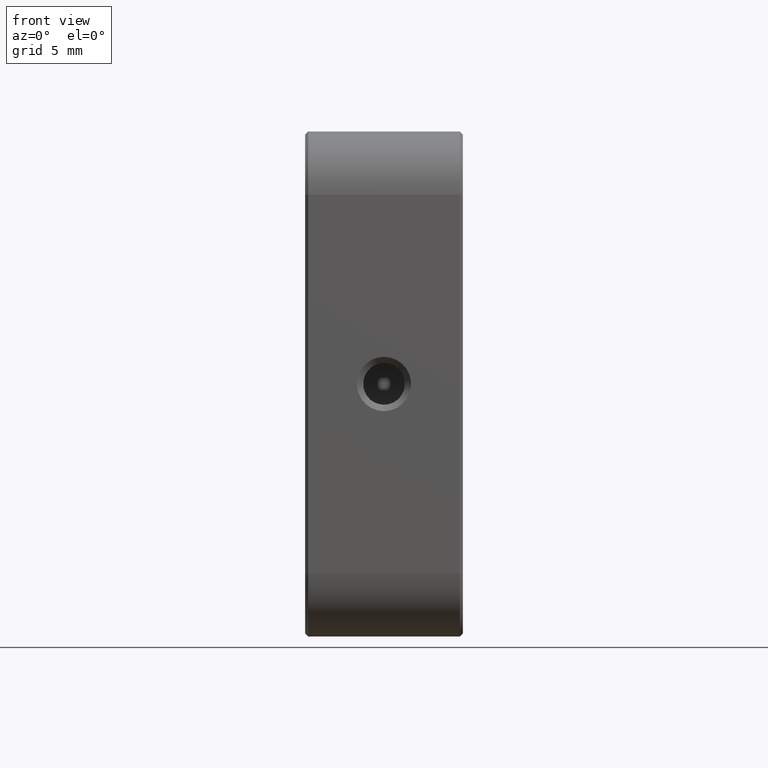
[diagram: clean part render]
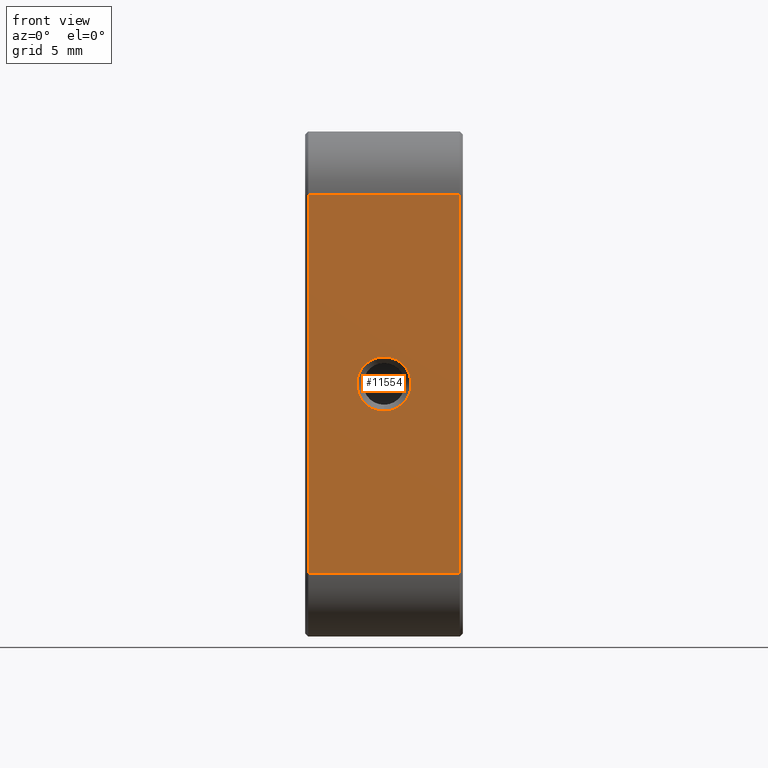
[diagram: same view with one face highlighted and labeled with its STEP entity id]
A machine part, front view. The second image highlights one B-rep face of the part: STEP entity #11554.
In plain terms, the highlighted planar face has unit normal (-0, 1, 0).
Its self-contained STEP definition (entity closure, byte-faithful):
#6 = FACE_BOUND ( 'NONE', #8148, .T. ) ;
#11 = LINE ( 'NONE', #8696, #2052 ) ;
#130 = VERTEX_POINT ( 'NONE', #3807 ) ;
#564 = DIRECTION ( 'NONE',  ( -0.000000000000000000, -1.000000000000000000, -0.000000000000000000 ) ) ;
#911 = VERTEX_POINT ( 'NONE', #11695 ) ;
#1003 = CARTESIAN_POINT ( 'NONE',  ( -8.709600636929948791, -17.89069877659089158, 25.00000000000000355 ) ) ;
#1129 = LINE ( 'NONE', #4371, #5208 ) ;
#1802 = ORIENTED_EDGE ( 'NONE', *, *, #11787, .F. ) ;
#2052 = VECTOR ( 'NONE', #2136, 1000.000000000000000 ) ;
#2136 = DIRECTION ( 'NONE',  ( 0.000000000000000000, 0.000000000000000000, 1.000000000000000000 ) ) ;
#2444 = ORIENTED_EDGE ( 'NONE', *, *, #2806, .T. ) ;
#2594 = CARTESIAN_POINT ( 'NONE',  ( -14.70960063692994879, -17.89069877659089158, 40.00000000000001421 ) ) ;
#2686 = DIRECTION ( 'NONE',  ( 0.000000000000000000, 0.000000000000000000, -1.000000000000000000 ) ) ;
#2765 = DIRECTION ( 'NONE',  ( 1.000000000000000000, -0.000000000000000000, -0.000000000000000000 ) ) ;
#2806 = EDGE_CURVE ( 'NONE', #130, #911, #1129, .T. ) ;
#3440 = DIRECTION ( 'NONE',  ( -0.000000000000000000, 1.000000000000000000, 0.000000000000000000 ) ) ;
#3662 = ORIENTED_EDGE ( 'NONE', *, *, #11995, .F. ) ;
#3807 = CARTESIAN_POINT ( 'NONE',  ( -8.709600636929948791, -17.89069877659089158, 55.00000000000000711 ) ) ;
#4001 = EDGE_CURVE ( 'NONE', #14053, #6608, #11372, .T. ) ;
#4308 = CARTESIAN_POINT ( 'NONE',  ( -20.70960063692994169, -17.89069877659089158, 60.00000000000001421 ) ) ;
#4371 = CARTESIAN_POINT ( 'NONE',  ( -8.459600636929948791, -17.89069877659089158, 55.00000000000000711 ) ) ;
#4787 = LINE ( 'NONE', #4308, #11023 ) ;
#5208 = VECTOR ( 'NONE', #5452, 1000.000000000000000 ) ;
#5452 = DIRECTION ( 'NONE',  ( -1.000000000000000000, 0.000000000000000000, 0.000000000000000000 ) ) ;
#6396 = EDGE_CURVE ( 'NONE', #911, #14053, #4787, .T. ) ;
#6606 = EDGE_CURVE ( 'NONE', #6608, #130, #11, .T. ) ;
#6608 = VERTEX_POINT ( 'NONE', #1003 ) ;
#6791 = CIRCLE ( 'NONE', #10212, 2.149999999999999023 ) ;
#6855 = ORIENTED_EDGE ( 'NONE', *, *, #6396, .T. ) ;
#6975 = CARTESIAN_POINT ( 'NONE',  ( -20.70960063692994169, -17.89069877659089158, 25.00000000000000355 ) ) ;
#7087 = CARTESIAN_POINT ( 'NONE',  ( -14.70960063692994879, -17.89069877659089158, 37.85000000000001563 ) ) ;
#7626 = DIRECTION ( 'NONE',  ( 0.000000000000000000, 0.000000000000000000, -1.000000000000000000 ) ) ;
#7780 = CARTESIAN_POINT ( 'NONE',  ( -8.459600636929948791, -17.89069877659089158, 60.00000000000001421 ) ) ;
#8148 = EDGE_LOOP ( 'NONE', ( #1802, #3662 ) ) ;
#8162 = CIRCLE ( 'NONE', #13674, 2.149999999999999023 ) ;
#8696 = CARTESIAN_POINT ( 'NONE',  ( -8.709600636929948791, -17.89069877659089158, 55.00000000000000711 ) ) ;
#8787 = DIRECTION ( 'NONE',  ( 0.000000000000000000, 0.000000000000000000, -1.000000000000000000 ) ) ;
#8819 = PLANE ( 'NONE',  #14134 ) ;
#8858 = VERTEX_POINT ( 'NONE', #7087 ) ;
#8905 = ORIENTED_EDGE ( 'NONE', *, *, #6606, .T. ) ;
#8939 = VERTEX_POINT ( 'NONE', #13049 ) ;
#9281 = CARTESIAN_POINT ( 'NONE',  ( -8.459600636929948791, -17.89069877659089158, 25.00000000000000355 ) ) ;
#10079 = ORIENTED_EDGE ( 'NONE', *, *, #4001, .T. ) ;
#10212 = AXIS2_PLACEMENT_3D ( 'NONE', #2594, #564, #2686 ) ;
#11023 = VECTOR ( 'NONE', #8787, 1000.000000000000000 ) ;
#11123 = DIRECTION ( 'NONE',  ( 0.000000000000000000, -0.000000000000000000, 1.000000000000000000 ) ) ;
#11372 = LINE ( 'NONE', #9281, #11730 ) ;
#11554 = ADVANCED_FACE ( 'NONE', ( #6, #11891 ), #8819, .F. ) ;
#11695 = CARTESIAN_POINT ( 'NONE',  ( -20.70960063692994169, -17.89069877659089158, 55.00000000000000711 ) ) ;
#11730 = VECTOR ( 'NONE', #2765, 1000.000000000000000 ) ;
#11787 = EDGE_CURVE ( 'NONE', #8858, #8939, #6791, .T. ) ;
#11891 = FACE_OUTER_BOUND ( 'NONE', #13457, .T. ) ;
#11904 = CARTESIAN_POINT ( 'NONE',  ( -14.70960063692994879, -17.89069877659089158, 40.00000000000001421 ) ) ;
#11995 = EDGE_CURVE ( 'NONE', #8939, #8858, #8162, .T. ) ;
#12000 = DIRECTION ( 'NONE',  ( -0.000000000000000000, -1.000000000000000000, -0.000000000000000000 ) ) ;
#13049 = CARTESIAN_POINT ( 'NONE',  ( -14.70960063692994879, -17.89069877659089158, 42.15000000000001279 ) ) ;
#13457 = EDGE_LOOP ( 'NONE', ( #2444, #6855, #10079, #8905 ) ) ;
#13674 = AXIS2_PLACEMENT_3D ( 'NONE', #11904, #12000, #7626 ) ;
#14053 = VERTEX_POINT ( 'NONE', #6975 ) ;
#14134 = AXIS2_PLACEMENT_3D ( 'NONE', #7780, #3440, #11123 ) ;